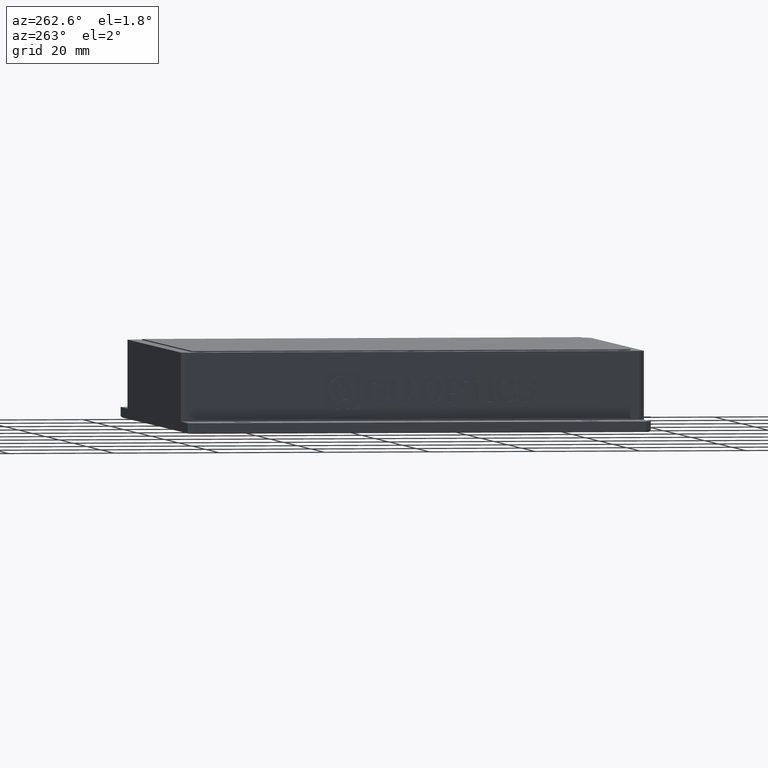
[diagram: clean part render]
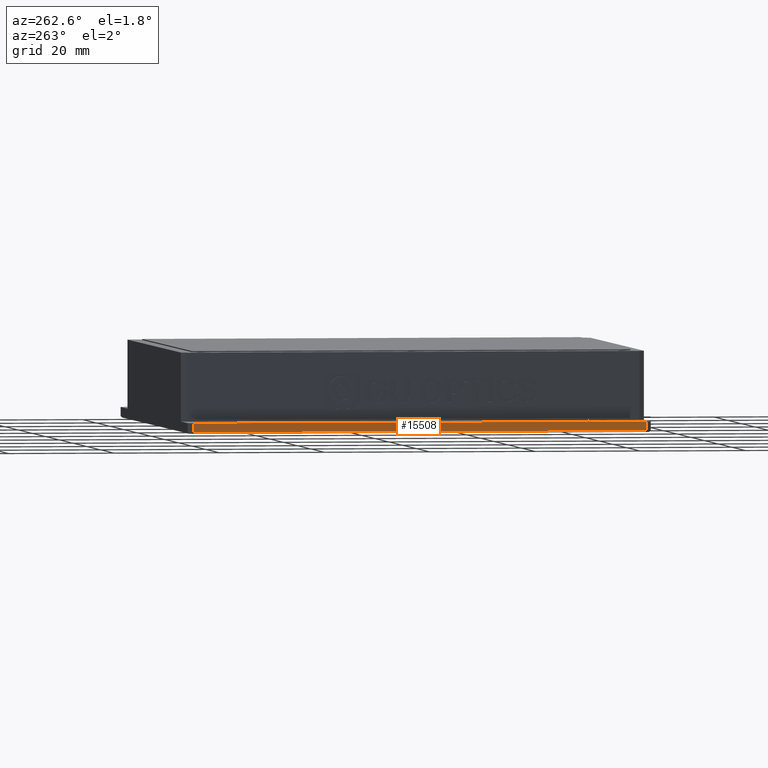
[diagram: same view with one face highlighted and labeled with its STEP entity id]
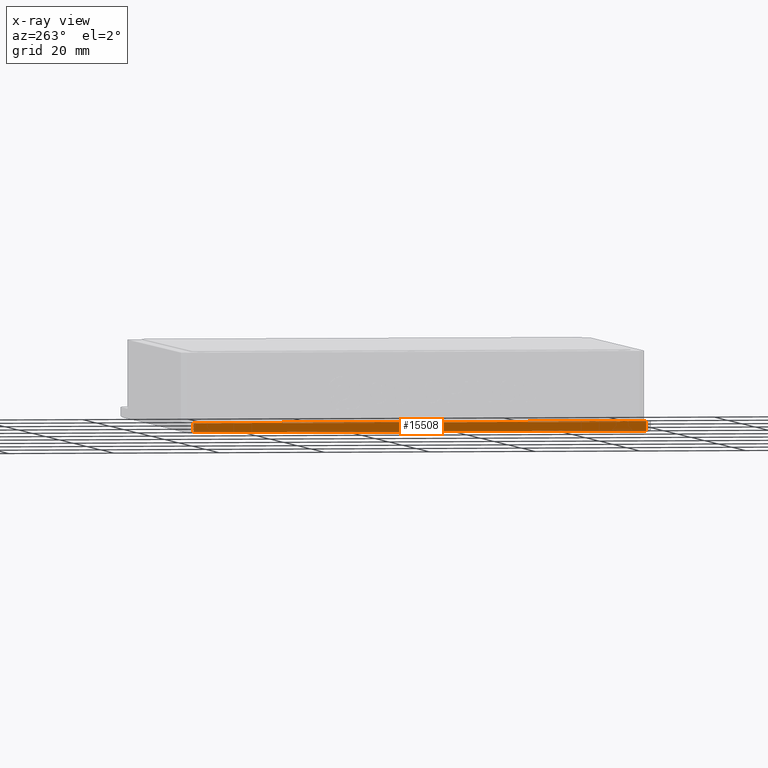
[diagram: x-ray of the same camera — body ghosted, the highlighted face saturated]
A machine part, auxiliary view. The second image highlights one B-rep face of the part: STEP entity #15508.
The next image is the same camera in x-ray: the body ghosted, the highlighted face saturated — about 0% of this face is hidden behind the body in this view.
In plain terms, the highlighted planar face has unit normal (1, 0, 0).
Its self-contained STEP definition (entity closure, byte-faithful):
#1186 = DIRECTION ( 'NONE',  ( 0.0000000000000000000, 0.0000000000000000000, -1.000000000000000000 ) ) ;
#2008 = CARTESIAN_POINT ( 'NONE',  ( -32.94768995799925900, -47.20007636502478500, -4.547577592273199800E-012 ) ) ;
#2799 = CARTESIAN_POINT ( 'NONE',  ( -32.94768995799925900, 39.79992363497521500, -4.547577592273199800E-012 ) ) ;
#2900 = EDGE_CURVE ( 'NONE', #14671, #9446, #5189, .T. ) ;
#3653 = CARTESIAN_POINT ( 'NONE',  ( -32.94768995799925900, -48.20007636502478500, -1.700000000004553000 ) ) ;
#3742 = AXIS2_PLACEMENT_3D ( 'NONE', #17563, #9463, #1186 ) ;
#3797 = ORIENTED_EDGE ( 'NONE', *, *, #2900, .T. ) ;
#5067 = DIRECTION ( 'NONE',  ( -0.0000000000000000000, 1.000000000000000000, 0.0000000000000000000 ) ) ;
#5083 = EDGE_LOOP ( 'NONE', ( #5588, #11476, #3797, #9336 ) ) ;
#5189 = LINE ( 'NONE', #2799, #7989 ) ;
#5588 = ORIENTED_EDGE ( 'NONE', *, *, #17613, .F. ) ;
#5851 = VERTEX_POINT ( 'NONE', #11530 ) ;
#5912 = LINE ( 'NONE', #17633, #13134 ) ;
#6407 = VERTEX_POINT ( 'NONE', #11825 ) ;
#7923 = VECTOR ( 'NONE', #5067, 1000.000000000000000 ) ;
#7989 = VECTOR ( 'NONE', #8595, 1000.000000000000000 ) ;
#8595 = DIRECTION ( 'NONE',  ( 0.0000000000000000000, 1.000000000000000000, 0.0000000000000000000 ) ) ;
#9082 = FACE_OUTER_BOUND ( 'NONE', #5083, .T. ) ;
#9336 = ORIENTED_EDGE ( 'NONE', *, *, #15034, .T. ) ;
#9446 = VERTEX_POINT ( 'NONE', #12091 ) ;
#9463 = DIRECTION ( 'NONE',  ( 1.000000000000000000, 0.0000000000000000000, 0.0000000000000000000 ) ) ;
#9869 = VECTOR ( 'NONE', #14336, 1000.000000000000000 ) ;
#9877 = CARTESIAN_POINT ( 'NONE',  ( -32.94768995799925900, -47.20007636502478500, -4.547577592273199800E-012 ) ) ;
#11085 = LINE ( 'NONE', #3653, #7923 ) ;
#11476 = ORIENTED_EDGE ( 'NONE', *, *, #15832, .F. ) ;
#11530 = CARTESIAN_POINT ( 'NONE',  ( -32.94768995799925900, -47.20007636502478500, -1.700000000004549900 ) ) ;
#11825 = CARTESIAN_POINT ( 'NONE',  ( -32.94768995799925900, 38.79992363497523700, -1.700000000004552300 ) ) ;
#12091 = CARTESIAN_POINT ( 'NONE',  ( -32.94768995799926600, 38.79992363497523700, -4.547577592273199800E-012 ) ) ;
#13134 = VECTOR ( 'NONE', #17582, 1000.000000000000000 ) ;
#13484 = LINE ( 'NONE', #2008, #9869 ) ;
#14336 = DIRECTION ( 'NONE',  ( 0.0000000000000000000, 0.0000000000000000000, -1.000000000000000000 ) ) ;
#14671 = VERTEX_POINT ( 'NONE', #9877 ) ;
#15034 = EDGE_CURVE ( 'NONE', #9446, #6407, #5912, .T. ) ;
#15508 = ADVANCED_FACE ( 'NONE', ( #9082 ), #16133, .F. ) ;
#15832 = EDGE_CURVE ( 'NONE', #14671, #5851, #13484, .T. ) ;
#16133 = PLANE ( 'NONE',  #3742 ) ;
#17563 = CARTESIAN_POINT ( 'NONE',  ( -32.94768995799925900, -48.20007636502478500, -4.547577592273199800E-012 ) ) ;
#17582 = DIRECTION ( 'NONE',  ( 0.0000000000000000000, -0.0000000000000000000, -1.000000000000000000 ) ) ;
#17613 = EDGE_CURVE ( 'NONE', #5851, #6407, #11085, .T. ) ;
#17633 = CARTESIAN_POINT ( 'NONE',  ( -32.94768995799927300, 38.79992363497522200, -4.547577592273199800E-012 ) ) ;